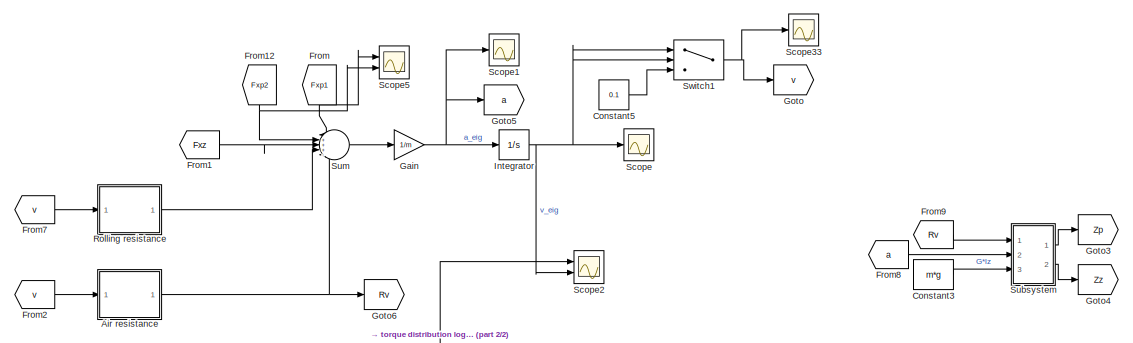
[diagram: root canvas - part 1/2, full width, top band]
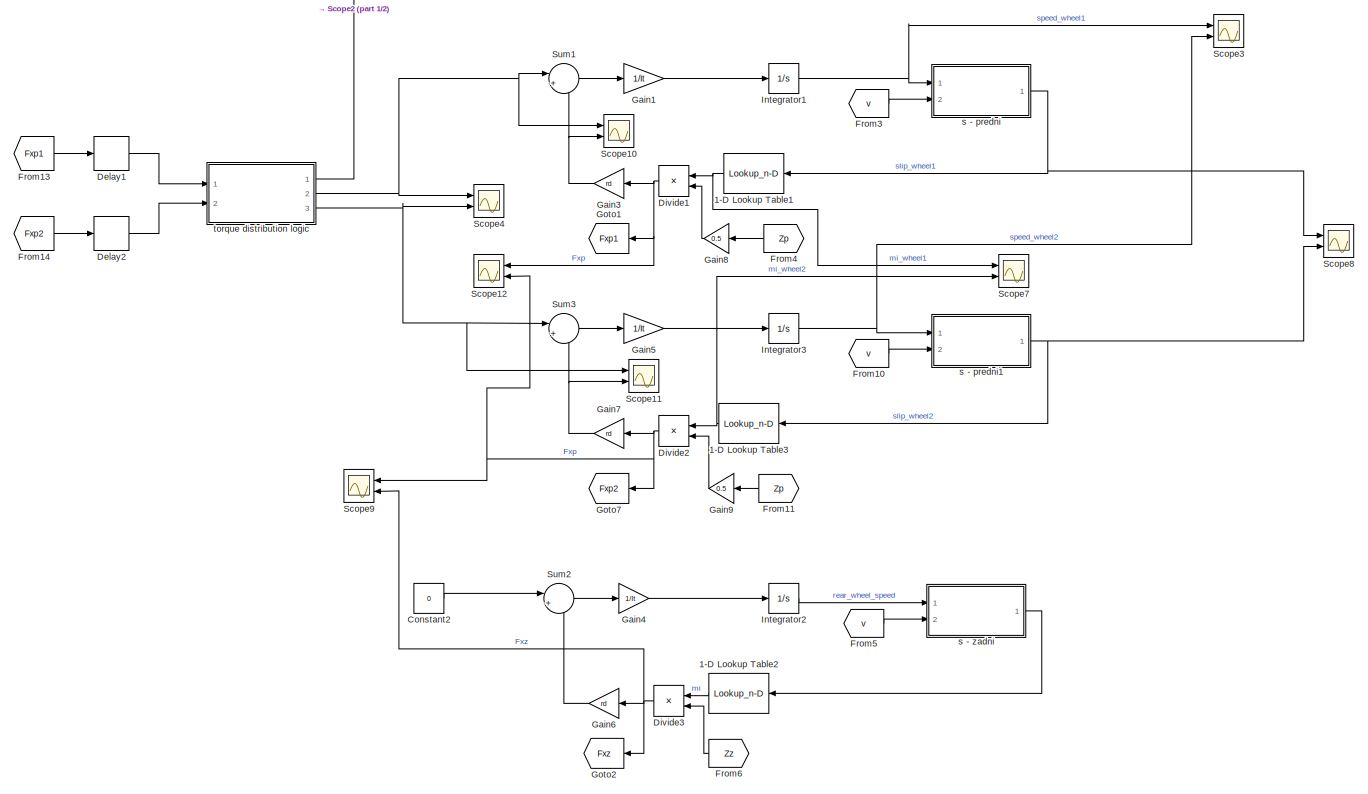
[diagram: root canvas - part 2/2, full width, bottom band]
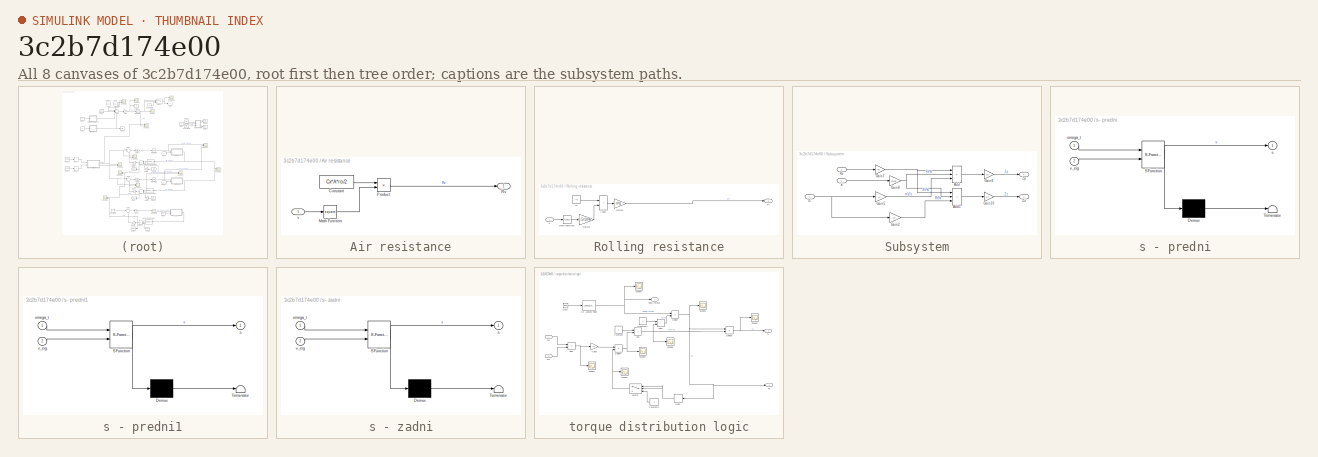
[diagram: thumbnail index - all 8 canvases of the model, root first then tree order]
MODEL slx_3c2b7d174e00
KIND model
CONFIG AbsTol = auto
CONFIG EnableMultiTasking = off
CONFIG FixedStep = 0.0001
CONFIG MaxStep = 0.0001
CONFIG MinStep = auto
CONFIG RelTol = 1e-12
CONFIG SampleTimeConstraint = Unconstrained
CONFIG SolverName = FixedStepAuto
CONFIG StartTime = 0.0
CONFIG StopTime = time
BLOCK [Lookup_n-D] 1-D Lookup Table1
  BreakpointsForDimension1 = s
  InputPortMap = u0
  InternalRulePriority = Speed
  NameLocation = top
  NumberOfTableDimensions = 1
  Ports = [1, 1]
  RndMeth = Simplest
  Table = mi
BLOCK [Lookup_n-D] 1-D Lookup Table2
  BreakpointsForDimension1 = s
  InputPortMap = u0
  InternalRulePriority = Speed
  NameLocation = top
  NumberOfTableDimensions = 1
  Ports = [1, 1]
  RndMeth = Simplest
  Table = mi
BLOCK [Lookup_n-D] 1-D Lookup Table3
  BreakpointsForDimension1 = s
  InputPortMap = u0
  InternalRulePriority = Speed
  NameLocation = top
  NumberOfTableDimensions = 1
  Ports = [1, 1]
  RndMeth = Simplest
  Table = mi_wet
BLOCK [SubSystem] Air resistance
  Ports = [1, 1]
  RequestExecContextInheritance = off
BLOCK [Constant] Air resistance/Constant
  Value = Cx*A*ro/2
BLOCK [Math] Air resistance/Math Function
  Operator = square
  Ports = [1, 1]
BLOCK [Product] Air resistance/Product
  Ports = [2, 1]
BLOCK [Outport] Air resistance/Rv
BLOCK [Inport] Air resistance/v
BLOCK [Constant] Constant2
  Value = 0
BLOCK [Constant] Constant3
  Value = m*g
BLOCK [Constant] Constant5
  Value = 0.1
BLOCK [Delay] Delay1
  DelayLength = 1
  InitialCondition = 0
  InputPortMap = u0
  Ports = [1, 1]
BLOCK [Delay] Delay2
  DelayLength = 1
  InitialCondition = 0
  InputPortMap = u0
  Ports = [1, 1]
BLOCK [Product] Divide1
  Inputs = **
  NameLocation = top
  Ports = [2, 1]
BLOCK [Product] Divide2
  Inputs = **
  NameLocation = top
  Ports = [2, 1]
BLOCK [Product] Divide3
  Inputs = **
  NameLocation = top
  Ports = [2, 1]
BLOCK [From] From
  GotoTag = Fxp1
  NameLocation = left
BLOCK [From] From1
  GotoTag = Fxz
BLOCK [From] From10
  GotoTag = v
BLOCK [From] From11
  GotoTag = Zp
  NameLocation = top
BLOCK [From] From12
  GotoTag = Fxp2
  NameLocation = left
BLOCK [From] From13
  GotoTag = Fxp1
BLOCK [From] From14
  GotoTag = Fxp2
BLOCK [From] From2
  GotoTag = v
BLOCK [From] From3
  GotoTag = v
BLOCK [From] From4
  GotoTag = Zp
  NameLocation = top
BLOCK [From] From5
  GotoTag = v
BLOCK [From] From6
  GotoTag = Zz
  NameLocation = top
BLOCK [From] From7
  GotoTag = v
BLOCK [From] From8
  GotoTag = a
BLOCK [From] From9
  GotoTag = Rv
BLOCK [Gain] Gain
  Gain = 1/m
BLOCK [Gain] Gain1
  Gain = 1/It
BLOCK [Gain] Gain3
  Gain = rd
  NameLocation = top
BLOCK [Gain] Gain4
  Gain = 1/It
BLOCK [Gain] Gain5
  Gain = 1/It
BLOCK [Gain] Gain6
  Gain = rd
  NameLocation = top
BLOCK [Gain] Gain7
  Gain = rd
  NameLocation = top
BLOCK [Gain] Gain8
  Gain = 0.5
  NameLocation = top
BLOCK [Gain] Gain9
  Gain = 0.5
  NameLocation = top
BLOCK [Goto] Goto
  GotoTag = v
BLOCK [Goto] Goto1
  GotoTag = Fxp1
  NameLocation = top
BLOCK [Goto] Goto2
  GotoTag = Fxz
  NameLocation = top
BLOCK [Goto] Goto3
  GotoTag = Zp
BLOCK [Goto] Goto4
  GotoTag = Zz
BLOCK [Goto] Goto5
  GotoTag = a
BLOCK [Goto] Goto6
  GotoTag = Rv
BLOCK [Goto] Goto7
  GotoTag = Fxp2
  NameLocation = top
BLOCK [Integrator] Integrator
  InitialCondition = v0_sim
  Ports = [1, 1]
  ZeroCross = off
BLOCK [Integrator] Integrator1
  InitialCondition = v0_sim/rd
  Ports = [1, 1]
BLOCK [Integrator] Integrator2
  InitialCondition = v0_sim/rd
  Ports = [1, 1]
BLOCK [Integrator] Integrator3
  InitialCondition = v0_sim/rd
  Ports = [1, 1]
BLOCK [SubSystem] Rolling resistance
  Ports = [1, 1]
  RequestExecContextInheritance = off
BLOCK [Sum] Rolling resistance/Add3
  IconShape = rectangular
  Ports = [2, 1]
BLOCK [Gain] Rolling resistance/Gain11
  Gain = m*g
BLOCK [Gain] Rolling resistance/Gain12
  Gain = 0.5/10^6
BLOCK [Math] Rolling resistance/Math Function1
  Operator = square
  Ports = [1, 1]
BLOCK [Outport] Rolling resistance/Rf
BLOCK [Constant] Rolling resistance/f0
  Value = f0
BLOCK [Inport] Rolling resistance/v
BLOCK [Scope] Scope
  Floating = off
  NumInputPorts = 1
  Ports = [1]
  ScopeSpecificationString = Simulink.scopes.TimeScopeBlockCfg('CurrentConfiguration', extmgr.ConfigurationSet(extmgr.Configuration('Core','General UI',true),extmgr.Configuration('Core','Source UI',true),extmgr.Configuration('Sources','WiredSimulink',true,'DataLoggingVariableName','ScopeData1'),extmgr.Configuration('Visuals','Time Domain',true,'SerializedDisplays',{struct('MinYLimReal','13.38877','MaxYLimReal','28.45616','YLa...<+1448ch>
BLOCK [Scope] Scope1
  Floating = off
  NumInputPorts = 1
  Ports = [1]
  ScopeSpecificationString = Simulink.scopes.TimeScopeBlockCfg('CurrentConfiguration', extmgr.ConfigurationSet(extmgr.Configuration('Core','General UI',true),extmgr.Configuration('Core','Source UI',true),extmgr.Configuration('Sources','WiredSimulink',true,'DataLoggingVariableName','ScopeData2'),extmgr.Configuration('Visuals','Time Domain',true,'SerializedDisplays',{struct('MinYLimReal','-0.67119','MaxYLimReal','3.73158','YLab...<+1412ch>
BLOCK [Scope] Scope10
  Floating = off
  NumInputPorts = 2
  Ports = [2]
  ScopeSpecificationString = Simulink.scopes.TimeScopeBlockCfg('CurrentConfiguration', extmgr.ConfigurationSet(extmgr.Configuration('Core','General UI',true),extmgr.Configuration('Core','Source UI',true),extmgr.Configuration('Sources','WiredSimulink',true,'DataLoggingVariableName','ScopeData6'),extmgr.Configuration('Visuals','Time Domain',true,'SerializedDisplays',{struct('MinYLimReal','-1718.74686','MaxYLimReal','1485.95811'...<+1513ch>
BLOCK [Scope] Scope11
  Floating = off
  NumInputPorts = 2
  Ports = [2]
  ScopeSpecificationString = Simulink.scopes.TimeScopeBlockCfg('CurrentConfiguration', extmgr.ConfigurationSet(extmgr.Configuration('Core','General UI',true),extmgr.Configuration('Core','Source UI',true),extmgr.Configuration('Sources','WiredSimulink',true,'DataLoggingVariableName','ScopeData7'),extmgr.Configuration('Visuals','Time Domain',true,'SerializedDisplays',{struct('MinYLimReal','-1310.89968','MaxYLimReal','1249.98033'...<+1487ch>
BLOCK [Scope] Scope12
  Floating = off
  NameLocation = top
  NumInputPorts = 2
  Ports = [2]
  ScopeSpecificationString = Simulink.scopes.TimeScopeBlockCfg('CurrentConfiguration', extmgr.ConfigurationSet(extmgr.Configuration('Core','General UI',true),extmgr.Configuration('Core','Source UI',true),extmgr.Configuration('Sources','WiredSimulink',true,'DataLoggingVariableName','ScopeData8'),extmgr.Configuration('Visuals','Time Domain',true,'SerializedDisplays',{struct('MinYLimReal','-919.77169','MaxYLimReal','879.40578','...<+1453ch>
BLOCK [Scope] Scope2
  Floating = off
  NumInputPorts = 2
  Ports = [2]
  ScopeSpecificationString = Simulink.scopes.TimeScopeBlockCfg('CurrentConfiguration', extmgr.ConfigurationSet(extmgr.Configuration('Core','General UI',true),extmgr.Configuration('Core','Source UI',true),extmgr.Configuration('Sources','WiredSimulink',true),extmgr.Configuration('Visuals','Time Domain',true,'SerializedDisplays',{struct('MinYLimReal','-249.89785','MaxYLimReal','2249.98865','YLabelReal','','MinYLimMag',' 0.00000'...<+2084ch>
BLOCK [Scope] Scope3
  Floating = off
  NumInputPorts = 2
  Ports = [2]
  ScopeSpecificationString = Simulink.scopes.TimeScopeBlockCfg('CurrentConfiguration', extmgr.ConfigurationSet(extmgr.Configuration('Core','General UI',true),extmgr.Configuration('Core','Source UI',true),extmgr.Configuration('Sources','WiredSimulink',true,'DataLoggingVariableName','ScopeData1'),extmgr.Configuration('Visuals','Time Domain',true,'SerializedDisplays',{struct('MinYLimReal','-100.19163','MaxYLimReal','901.72465','...<+1496ch>
BLOCK [Scope] Scope33
  Floating = off
  NumInputPorts = 1
  Ports = [1]
  ScopeSpecificationString = Simulink.scopes.TimeScopeBlockCfg('CurrentConfiguration', extmgr.ConfigurationSet(extmgr.Configuration('Core','General UI',true),extmgr.Configuration('Core','Source UI',true),extmgr.Configuration('Sources','WiredSimulink',true,'DataLoggingVariableName','ScopeData28'),extmgr.Configuration('Visuals','Time Domain',true,'SerializedDisplays',{struct('MinYLimReal','-3.05838','MaxYLimReal','28.52545','YL...<+1444ch>
BLOCK [Scope] Scope4
  Floating = off
  NumInputPorts = 2
  Ports = [2]
  ScopeSpecificationString = Simulink.scopes.TimeScopeBlockCfg('CurrentConfiguration', extmgr.ConfigurationSet(extmgr.Configuration('Core','General UI',true),extmgr.Configuration('Core','Source UI',true),extmgr.Configuration('Sources','WiredSimulink',true,'DataLoggingVariableName','ScopeData2'),extmgr.Configuration('Visuals','Time Domain',true,'SerializedDisplays',{struct('MinYLimReal','-125.00000','MaxYLimReal','1125.00000',...<+1507ch>
BLOCK [Scope] Scope5
  Floating = off
  NumInputPorts = 2
  Ports = [2]
  ScopeSpecificationString = Simulink.scopes.TimeScopeBlockCfg('CurrentConfiguration', extmgr.ConfigurationSet(extmgr.Configuration('Core','General UI',true),extmgr.Configuration('Core','Source UI',true),extmgr.Configuration('Sources','WiredSimulink',true,'DataLoggingVariableName','ScopeData1'),extmgr.Configuration('Visuals','Time Domain',true,'SerializedDisplays',{struct('MinYLimReal','-438.67045','MaxYLimReal','3948.03401',...<+1488ch>
BLOCK [Scope] Scope7
  Floating = off
  NumInputPorts = 2
  Ports = [2]
  ScopeSpecificationString = Simulink.scopes.TimeScopeBlockCfg('CurrentConfiguration', extmgr.ConfigurationSet(extmgr.Configuration('Core','General UI',true),extmgr.Configuration('Core','Source UI',true),extmgr.Configuration('Sources','WiredSimulink',true,'DataLoggingVariableName','ScopeData3'),extmgr.Configuration('Visuals','Time Domain',true,'SerializedDisplays',{struct('MinYLimReal','-1.0029','MaxYLimReal','1.0029','YLabel...<+2085ch>
BLOCK [Scope] Scope8
  Floating = off
  NumInputPorts = 2
  Ports = [2]
  ScopeSpecificationString = Simulink.scopes.TimeScopeBlockCfg('CurrentConfiguration', extmgr.ConfigurationSet(extmgr.Configuration('Core','General UI',true),extmgr.Configuration('Core','Source UI',true),extmgr.Configuration('Sources','WiredSimulink',true,'DataLoggingVariableName','ScopeData4'),extmgr.Configuration('Visuals','Time Domain',true,'SerializedDisplays',{struct('MinYLimReal','-1.24837','MaxYLimReal','1.23535','YLab...<+1477ch>
BLOCK [Scope] Scope9
  Floating = off
  NameLocation = top
  NumInputPorts = 2
  Ports = [2]
  ScopeSpecificationString = Simulink.scopes.TimeScopeBlockCfg('CurrentConfiguration', extmgr.ConfigurationSet(extmgr.Configuration('Core','General UI',true),extmgr.Configuration('Core','Source UI',true),extmgr.Configuration('Sources','WiredSimulink',true,'DataLoggingVariableName','ScopeData5'),extmgr.Configuration('Visuals','Time Domain',true,'SerializedDisplays',{struct('MinYLimReal','-4921.17749','MaxYLimReal','3721.72728'...<+1461ch>
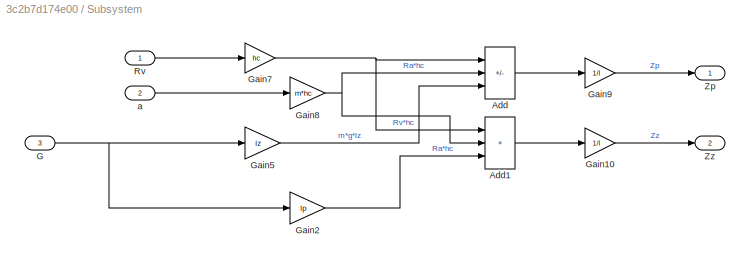
BLOCK [SubSystem] Subsystem
  Ports = [3, 2]
  RequestExecContextInheritance = off
BLOCK [Sum] Subsystem/Add
  IconShape = rectangular
  Inputs = --+
  Ports = [3, 1]
BLOCK [Sum] Subsystem/Add1
  IconShape = rectangular
  Inputs = +++
  Ports = [3, 1]
BLOCK [Inport] Subsystem/G
  Port = 3
BLOCK [Gain] Subsystem/Gain10
  Gain = 1/l
BLOCK [Gain] Subsystem/Gain2
  Gain = lp
BLOCK [Gain] Subsystem/Gain5
  Gain = lz
BLOCK [Gain] Subsystem/Gain7
  Gain = hc
BLOCK [Gain] Subsystem/Gain8
  Gain = m*hc
BLOCK [Gain] Subsystem/Gain9
  Gain = 1/l
BLOCK [Inport] Subsystem/Rv
BLOCK [Outport] Subsystem/Zp
BLOCK [Outport] Subsystem/Zz
  Port = 2
BLOCK [Inport] Subsystem/a
  Port = 2
BLOCK [Sum] Sum
  Inputs = |+++--
  Ports = [5, 1]
BLOCK [Sum] Sum1
  Inputs = |+-
  Ports = [2, 1]
BLOCK [Sum] Sum2
  Inputs = |+-
  Ports = [2, 1]
BLOCK [Sum] Sum3
  Inputs = |+-
  Ports = [2, 1]
BLOCK [Switch] Switch1
  Criteria = u2 > Threshold
  InputSameDT = off
  SaturateOnIntegerOverflow = off
  Threshold = 0.1
BLOCK [SubSystem] s - predni
  ErrorFcn = Stateflow.Translate.translate
  PermitHierarchicalResolution = ExplicitOnly
  Ports = [2, 1]
  RequestExecContextInheritance = off
  SFBlockType = MATLAB Function
  TreatAsAtomicUnit = on
BLOCK [Demux] s - predni/ Demux 
  Outputs = 1
  Ports = [1, 1]
BLOCK [S-Function] s - predni/ SFunction 
  EnableBusSupport = on
  FunctionName = sf_sfun
  PortCounts = [2 2]
  Ports = [2, 2]
  SFcnIsStateOwnerBlock = off
  SFunctionDeploymentMode = off
  Tag = Stateflow S-Function 2
BLOCK [Terminator] s - predni/ Terminator 
BLOCK [Inport] s - predni/omega_t
BLOCK [Outport] s - predni/s
BLOCK [Inport] s - predni/v_eig
  Port = 2
BLOCK [SubSystem] s - predni1
  ErrorFcn = Stateflow.Translate.translate
  PermitHierarchicalResolution = ExplicitOnly
  Ports = [2, 1]
  RequestExecContextInheritance = off
  SFBlockType = MATLAB Function
  TreatAsAtomicUnit = on
BLOCK [Demux] s - predni1/ Demux 
  Outputs = 1
  Ports = [1, 1]
BLOCK [S-Function] s - predni1/ SFunction 
  EnableBusSupport = on
  FunctionName = sf_sfun
  PortCounts = [2 2]
  Ports = [2, 2]
  SFcnIsStateOwnerBlock = off
  SFunctionDeploymentMode = off
  Tag = Stateflow S-Function 3
BLOCK [Terminator] s - predni1/ Terminator 
BLOCK [Inport] s - predni1/omega_t
BLOCK [Outport] s - predni1/s
BLOCK [Inport] s - predni1/v_eig
  Port = 2
BLOCK [SubSystem] s - zadni
  ErrorFcn = Stateflow.Translate.translate
  PermitHierarchicalResolution = ExplicitOnly
  Ports = [2, 1]
  RequestExecContextInheritance = off
  SFBlockType = MATLAB Function
  TreatAsAtomicUnit = on
BLOCK [Demux] s - zadni/ Demux 
  Outputs = 1
  Ports = [1, 1]
BLOCK [S-Function] s - zadni/ SFunction 
  EnableBusSupport = on
  FunctionName = sf_sfun
  PortCounts = [2 2]
  Ports = [2, 2]
  SFcnIsStateOwnerBlock = off
  SFunctionDeploymentMode = off
  Tag = Stateflow S-Function 1
BLOCK [Terminator] s - zadni/ Terminator 
BLOCK [Inport] s - zadni/omega_t
BLOCK [Outport] s - zadni/s
BLOCK [Inport] s - zadni/v_eig
  Port = 2
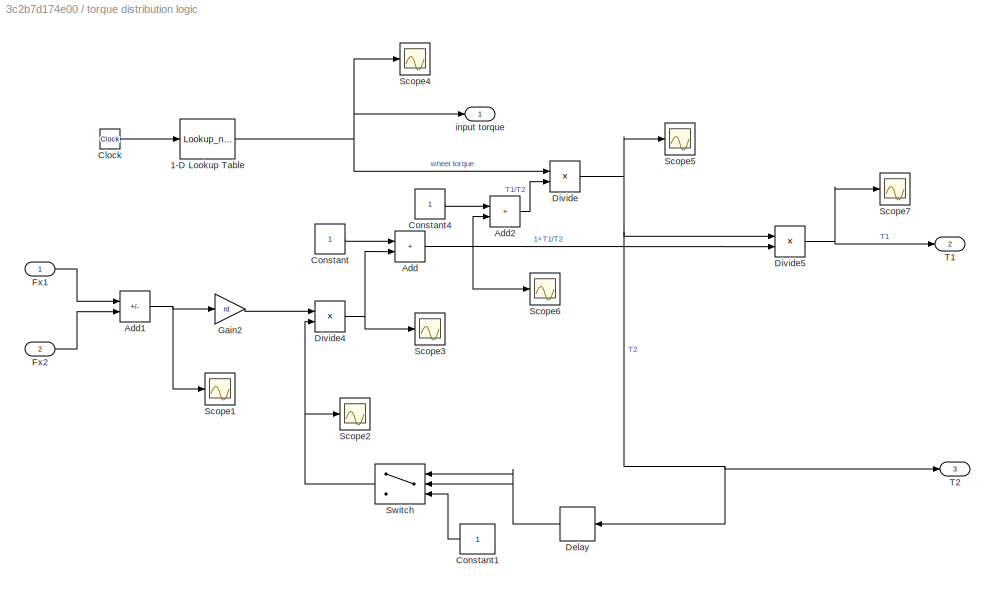
BLOCK [SubSystem] torque distribution logic
  Ports = [2, 3]
  RequestExecContextInheritance = off
BLOCK [Lookup_n-D] torque distribution logic/1-D Lookup Table
  BreakpointsForDimension1 = chosen_input_t
  InputPortMap = u0
  InternalRulePriority = Speed
  NumberOfTableDimensions = 1
  Ports = [1, 1]
  RndMeth = Simplest
  Table = chosen_input_T
BLOCK [Sum] torque distribution logic/Add
  IconShape = rectangular
  Ports = [2, 1]
BLOCK [Sum] torque distribution logic/Add1
  IconShape = rectangular
  Inputs = +-
  Ports = [2, 1]
BLOCK [Sum] torque distribution logic/Add2
  IconShape = rectangular
  Ports = [2, 1]
BLOCK [Clock] torque distribution logic/Clock
BLOCK [Constant] torque distribution logic/Constant
BLOCK [Constant] torque distribution logic/Constant1
  NameLocation = top
BLOCK [Constant] torque distribution logic/Constant4
BLOCK [Delay] torque distribution logic/Delay
  DelayLength = 1
  InitialCondition = 0
  InputPortMap = u0
  NameLocation = top
  Ports = [1, 1]
BLOCK [Product] torque distribution logic/Divide
  Inputs = */
  Ports = [2, 1]
BLOCK [Product] torque distribution logic/Divide4
  Inputs = */
  Ports = [2, 1]
BLOCK [Product] torque distribution logic/Divide5
  Inputs = **
  Ports = [2, 1]
BLOCK [Inport] torque distribution logic/Fx1
BLOCK [Inport] torque distribution logic/Fx2
  Port = 2
BLOCK [Gain] torque distribution logic/Gain2
  Gain = rd
BLOCK [Scope] torque distribution logic/Scope1
  Floating = off
  NumInputPorts = 1
  Ports = [1]
  ScopeSpecificationString = Simulink.scopes.TimeScopeBlockCfg('CurrentConfiguration', extmgr.ConfigurationSet(extmgr.Configuration('Core','General UI',true),extmgr.Configuration('Core','Source UI',true),extmgr.Configuration('Sources','WiredSimulink',true,'DataLoggingVariableName','ScopeData1'),extmgr.Configuration('Visuals','Time Domain',true,'SerializedDisplays',{struct('MinYLimReal','-1844.58953','MaxYLimReal','4300.72233'...<+1458ch>
BLOCK [Scope] torque distribution logic/Scope2
  Floating = off
  NumInputPorts = 1
  Ports = [1]
  ScopeSpecificationString = Simulink.scopes.TimeScopeBlockCfg('CurrentConfiguration', extmgr.ConfigurationSet(extmgr.Configuration('Core','General UI',true),extmgr.Configuration('Core','Source UI',true),extmgr.Configuration('Sources','WiredSimulink',true,'DataLoggingVariableName','ScopeData2'),extmgr.Configuration('Visuals','Time Domain',true,'SerializedDisplays',{struct('MinYLimReal','-329.26656','MaxYLimReal','2973.39903',...<+1456ch>
BLOCK [Scope] torque distribution logic/Scope3
  Floating = off
  NumInputPorts = 1
  Ports = [1]
  ScopeSpecificationString = Simulink.scopes.TimeScopeBlockCfg('CurrentConfiguration', extmgr.ConfigurationSet(extmgr.Configuration('Core','General UI',true),extmgr.Configuration('Core','Source UI',true),extmgr.Configuration('Sources','WiredSimulink',true,'DataLoggingVariableName','ScopeData3'),extmgr.Configuration('Visuals','Time Domain',true,'SerializedDisplays',{struct('MinYLimReal','-22420186435691160519309460685441304380...<+3897ch>
BLOCK [Scope] torque distribution logic/Scope4
  Floating = off
  NumInputPorts = 1
  Ports = [1]
  ScopeSpecificationString = Simulink.scopes.TimeScopeBlockCfg('CurrentConfiguration', extmgr.ConfigurationSet(extmgr.Configuration('Core','General UI',true),extmgr.Configuration('Core','Source UI',true),extmgr.Configuration('Sources','WiredSimulink',true,'DataLoggingVariableName','ScopeData4'),extmgr.Configuration('Visuals','Time Domain',true,'SerializedDisplays',{struct('MinYLimReal','-329.26656','MaxYLimReal','2973.39903',...<+1455ch>
BLOCK [Scope] torque distribution logic/Scope5
  Floating = off
  NumInputPorts = 1
  Ports = [1]
  ScopeSpecificationString = Simulink.scopes.TimeScopeBlockCfg('CurrentConfiguration', extmgr.ConfigurationSet(extmgr.Configuration('Core','General UI',true),extmgr.Configuration('Core','Source UI',true),extmgr.Configuration('Sources','WiredSimulink',true,'DataLoggingVariableName','ScopeData5'),extmgr.Configuration('Visuals','Time Domain',true,'SerializedDisplays',{struct('MinYLimReal','-329.26656','MaxYLimReal','2973.39903',...<+1455ch>
BLOCK [Scope] torque distribution logic/Scope6
  Floating = off
  NumInputPorts = 1
  Ports = [1]
  ScopeSpecificationString = Simulink.scopes.TimeScopeBlockCfg('CurrentConfiguration', extmgr.ConfigurationSet(extmgr.Configuration('Core','General UI',true),extmgr.Configuration('Core','Source UI',true),extmgr.Configuration('Sources','WiredSimulink',true,'DataLoggingVariableName','ScopeData2'),extmgr.Configuration('Visuals','Time Domain',true,'SerializedDisplays',{struct('MinYLimReal','-329.26656','MaxYLimReal','2973.39903',...<+1455ch>
BLOCK [Scope] torque distribution logic/Scope7
  Floating = off
  NumInputPorts = 1
  Ports = [1]
  ScopeSpecificationString = Simulink.scopes.TimeScopeBlockCfg('CurrentConfiguration', extmgr.ConfigurationSet(extmgr.Configuration('Core','General UI',true),extmgr.Configuration('Core','Source UI',true),extmgr.Configuration('Sources','WiredSimulink',true,'DataLoggingVariableName','ScopeData6'),extmgr.Configuration('Visuals','Time Domain',true,'SerializedDisplays',{struct('MinYLimReal','-329.26656','MaxYLimReal','2973.39903',...<+1455ch>
BLOCK [Switch] torque distribution logic/Switch
  Criteria = u2 > Threshold
  InputSameDT = off
  NameLocation = top
  SaturateOnIntegerOverflow = off
BLOCK [Outport] torque distribution logic/T1
  Port = 2
BLOCK [Outport] torque distribution logic/T2
  Port = 3
BLOCK [Outport] torque distribution logic/input torque
NET 1-D Lookup Table1:1 -> Divide1:1, Scope7:1
LINE 1-D Lookup Table2:1 -> Divide3:1
NET 1-D Lookup Table3:1 -> Divide2:1, Scope7:2
LINE Air resistance/Constant:1 -> Air resistance/Product:1
LINE Air resistance/Math Function:1 -> Air resistance/Product:2
LINE Air resistance/Product:1 -> Air resistance/Rv:1
LINE Air resistance/v:1 -> Air resistance/Math Function:1
NET Air resistance:1 -> Goto6:1, Sum:5
LINE Constant2:1 -> Sum2:1
LINE Constant3:1 -> Subsystem:3
LINE Constant5:1 -> Switch1:3
LINE Delay1:1 -> torque distribution logic:1
LINE Delay2:1 -> torque distribution logic:2
NET Divide1:1 -> Gain3:1, Goto1:1, Scope12:1
NET Divide2:1 -> Gain7:1, Goto7:1, Scope12:2, Scope9:1
NET Divide3:1 -> Gain6:1, Goto2:1, Scope9:2
LINE From10:1 -> s - predni1:2
LINE From11:1 -> Gain9:1
NET From12:1 -> Scope5:2, Sum:2
LINE From13:1 -> Delay1:1
LINE From14:1 -> Delay2:1
LINE From1:1 -> Sum:3
LINE From2:1 -> Air resistance:1
LINE From3:1 -> s - predni:2
LINE From4:1 -> Gain8:1
LINE From5:1 -> s - zadni:2
LINE From6:1 -> Divide3:2
LINE From7:1 -> Rolling resistance:1
LINE From8:1 -> Subsystem:2
LINE From9:1 -> Subsystem:1
NET From:1 -> Scope5:1, Sum:1
LINE Gain1:1 -> Integrator1:1
NET Gain3:1 -> Scope10:2, Sum1:2
LINE Gain4:1 -> Integrator2:1
LINE Gain5:1 -> Integrator3:1
LINE Gain6:1 -> Sum2:2
NET Gain7:1 -> Scope11:2, Sum3:2
LINE Gain8:1 -> Divide1:2
LINE Gain9:1 -> Divide2:2
NET Gain:1 -> Goto5:1, Integrator:1, Scope1:1
NET Integrator1:1 -> Scope3:1, s - predni:1
LINE Integrator2:1 -> s - zadni:1
NET Integrator3:1 -> Scope3:2, s - predni1:1
NET Integrator:1 -> Scope2:2, Scope:1, Switch1:1, Switch1:2
LINE Rolling resistance/Add3:1 -> Rolling resistance/Gain11:1
LINE Rolling resistance/Gain11:1 -> Rolling resistance/Rf:1
LINE Rolling resistance/Gain12:1 -> Rolling resistance/Add3:2
LINE Rolling resistance/Math Function1:1 -> Rolling resistance/Gain12:1
LINE Rolling resistance/f0:1 -> Rolling resistance/Add3:1
LINE Rolling resistance/v:1 -> Rolling resistance/Math Function1:1
LINE Rolling resistance:1 -> Sum:4
LINE Subsystem/Add1:1 -> Subsystem/Gain10:1
LINE Subsystem/Add:1 -> Subsystem/Gain9:1
NET Subsystem/G:1 -> Subsystem/Gain2:1, Subsystem/Gain5:1
LINE Subsystem/Gain10:1 -> Subsystem/Zz:1
LINE Subsystem/Gain2:1 -> Subsystem/Add1:3
LINE Subsystem/Gain5:1 -> Subsystem/Add:3
NET Subsystem/Gain7:1 -> Subsystem/Add1:1, Subsystem/Add:1
NET Subsystem/Gain8:1 -> Subsystem/Add1:2, Subsystem/Add:2
LINE Subsystem/Gain9:1 -> Subsystem/Zp:1
LINE Subsystem/Rv:1 -> Subsystem/Gain7:1
LINE Subsystem/a:1 -> Subsystem/Gain8:1
LINE Subsystem:1 -> Goto3:1
LINE Subsystem:2 -> Goto4:1
LINE Sum1:1 -> Gain1:1
LINE Sum2:1 -> Gain4:1
LINE Sum3:1 -> Gain5:1
LINE Sum:1 -> Gain:1
NET Switch1:1 -> Goto:1, Scope33:1
NET s - predni1:1 -> 1-D Lookup Table3:1, Scope8:2
NET s - predni:1 -> 1-D Lookup Table1:1, Scope8:1
LINE s - zadni:1 -> 1-D Lookup Table2:1
NET torque distribution logic/1-D Lookup Table:1 -> torque distribution logic/Divide:1, torque distribution logic/Scope4:1, torque distribution logic/input torque:1
NET torque distribution logic/Add1:1 -> torque distribution logic/Gain2:1, torque distribution logic/Scope1:1
LINE torque distribution logic/Add2:1 -> torque distribution logic/Divide:2
NET torque distribution logic/Add:1 -> torque distribution logic/Add2:2, torque distribution logic/Divide5:2, torque distribution logic/Scope6:1
LINE torque distribution logic/Clock:1 -> torque distribution logic/1-D Lookup Table:1
LINE torque distribution logic/Constant1:1 -> torque distribution logic/Switch:3
LINE torque distribution logic/Constant4:1 -> torque distribution logic/Add2:1
LINE torque distribution logic/Constant:1 -> torque distribution logic/Add:1
NET torque distribution logic/Delay:1 -> torque distribution logic/Switch:1, torque distribution logic/Switch:2
NET torque distribution logic/Divide4:1 -> torque distribution logic/Add:2, torque distribution logic/Scope3:1
NET torque distribution logic/Divide5:1 -> torque distribution logic/Scope7:1, torque distribution logic/T1:1
NET torque distribution logic/Divide:1 -> torque distribution logic/Delay:1, torque distribution logic/Divide5:1, torque distribution logic/Scope5:1, torque distribution logic/T2:1
LINE torque distribution logic/Fx1:1 -> torque distribution logic/Add1:1
LINE torque distribution logic/Fx2:1 -> torque distribution logic/Add1:2
LINE torque distribution logic/Gain2:1 -> torque distribution logic/Divide4:1
NET torque distribution logic/Switch:1 -> torque distribution logic/Divide4:2, torque distribution logic/Scope2:1
LINE torque distribution logic:1 -> Scope2:1
NET torque distribution logic:2 -> Scope10:1, Scope4:1, Sum1:1
NET torque distribution logic:3 -> Scope11:1, Scope4:2, Sum3:1
note: NET lines group one-source signal fan-out (src -> all destinations, sorted); 1:1 wires keep LINE
CHART s - predni states=1 transitions=1
  STATE_LABEL 'eML_blk_kernel()'
  STATE_LABEL 'SCRIPT:\nfunction s = fcn(omega_t, v_eig)\nrd = 0.3;\nif omega_t*rd >= v_eig\n    s = (omega_t*rd - v_eig)/(omega_t*rd);\nelse\n    s = (omega_t*rd - v_eig)/v_eig;\nend\n'
CHART s - predni1 states=1 transitions=1
  STATE_LABEL 'eML_blk_kernel()'
  STATE_LABEL 'SCRIPT:\nfunction s = fcn(omega_t, v_eig)\nrd = 0.3;\nif omega_t*rd >= v_eig\n    s = (omega_t*rd - v_eig)/(omega_t*rd);\nelse\n    s = (omega_t*rd - v_eig)/v_eig;\nend\n'
CHART s - zadni states=1 transitions=1
  STATE_LABEL 'eML_blk_kernel()'
  STATE_LABEL 'SCRIPT:\nfunction s = fcn(omega_t, v_eig)\nrd = 0.3;\nif omega_t*rd >= v_eig\n    s = (omega_t*rd - v_eig)/(omega_t*rd);\nelse\n    s = (omega_t*rd - v_eig)/v_eig;\nend\n'
CHART  states=0 transitions=0
CHART  states=0 transitions=0
CHART  states=0 transitions=0
